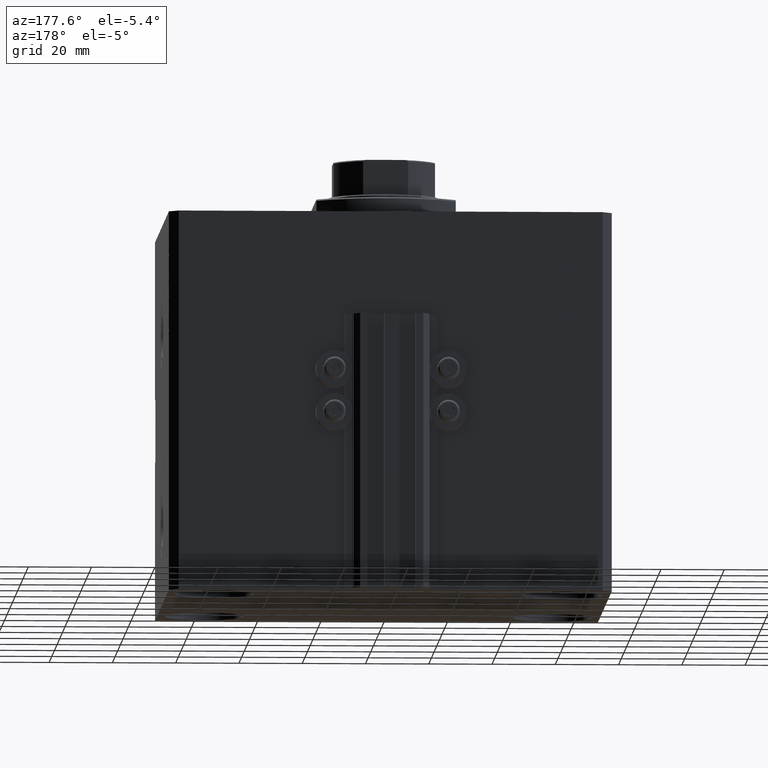
[diagram: clean part render]
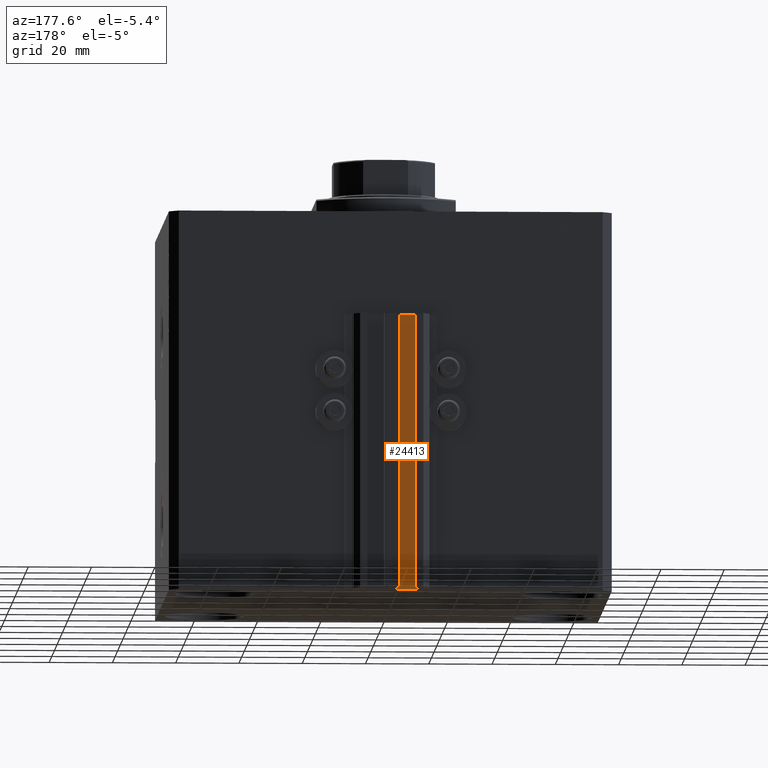
[diagram: same view with one face highlighted and labeled with its STEP entity id]
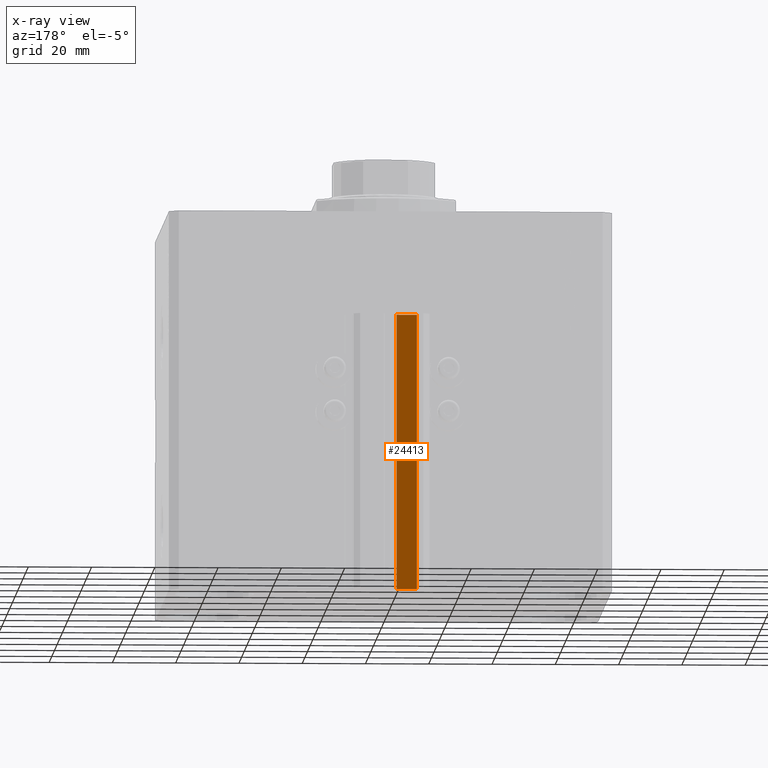
[diagram: x-ray of the same camera — body ghosted, the highlighted face saturated]
A machine part, auxiliary view. The second image highlights one B-rep face of the part: STEP entity #24413.
The next image is the same camera in x-ray: the body ghosted, the highlighted face saturated — about 0% of this face is hidden behind the body in this view.
In plain terms, the highlighted planar face has unit normal (0, 1, 0).
Its self-contained STEP definition (entity closure, byte-faithful):
#1225 = CARTESIAN_POINT ( 'NONE',  ( -1.800000000000000933, 57.00000000000000000, -33.00000000000000000 ) ) ;
#4106 = ORIENTED_EDGE ( 'NONE', *, *, #37953, .T. ) ;
#5208 = VERTEX_POINT ( 'NONE', #1225 ) ;
#6791 = LINE ( 'NONE', #28519, #14581 ) ;
#8046 = VECTOR ( 'NONE', #28829, 1000.000000000000000 ) ;
#9497 = EDGE_CURVE ( 'NONE', #40389, #5208, #6791, .T. ) ;
#9797 = VERTEX_POINT ( 'NONE', #29922 ) ;
#11166 = EDGE_LOOP ( 'NONE', ( #18982, #17372, #35896, #4106 ) ) ;
#14581 = VECTOR ( 'NONE', #21850, 1000.000000000000000 ) ;
#15717 = LINE ( 'NONE', #16436, #37675 ) ;
#16436 = CARTESIAN_POINT ( 'NONE',  ( -1.800000000000000933, 57.00000000000000000, -33.00000000000000000 ) ) ;
#16545 = CARTESIAN_POINT ( 'NONE',  ( -1.800000000000000933, 57.00000000000000000, -120.0000000000000000 ) ) ;
#17036 = PLANE ( 'NONE',  #45559 ) ;
#17372 = ORIENTED_EDGE ( 'NONE', *, *, #9497, .F. ) ;
#17482 = CARTESIAN_POINT ( 'NONE',  ( -1.800000000000000933, 57.00000000000000000, -120.0000000000000000 ) ) ;
#18982 = ORIENTED_EDGE ( 'NONE', *, *, #20335, .F. ) ;
#20335 = EDGE_CURVE ( 'NONE', #5208, #46179, #15717, .T. ) ;
#21850 = DIRECTION ( 'NONE',  ( 0.000000000000000000, 0.000000000000000000, 1.000000000000000000 ) ) ;
#24413 = ADVANCED_FACE ( 'NONE', ( #24923 ), #17036, .T. ) ;
#24910 = DIRECTION ( 'NONE',  ( 0.000000000000000000, 0.000000000000000000, 1.000000000000000000 ) ) ;
#24923 = FACE_OUTER_BOUND ( 'NONE', #11166, .T. ) ;
#26019 = VECTOR ( 'NONE', #24910, 1000.000000000000000 ) ;
#26800 = DIRECTION ( 'NONE',  ( -1.000000000000000000, 0.000000000000000000, 0.000000000000000000 ) ) ;
#27169 = CARTESIAN_POINT ( 'NONE',  ( -8.199999999999997513, 57.00000000000000000, -33.00000000000000000 ) ) ;
#28519 = CARTESIAN_POINT ( 'NONE',  ( -1.800000000000000933, 57.00000000000000000, -120.0000000000000000 ) ) ;
#28829 = DIRECTION ( 'NONE',  ( -1.000000000000000000, 0.000000000000000000, 0.000000000000000000 ) ) ;
#29922 = CARTESIAN_POINT ( 'NONE',  ( -8.199999999999997513, 57.00000000000000000, -120.0000000000000000 ) ) ;
#32078 = DIRECTION ( 'NONE',  ( 0.000000000000000000, 1.000000000000000000, -0.000000000000000000 ) ) ;
#32802 = CARTESIAN_POINT ( 'NONE',  ( -8.199999999999997513, 57.00000000000000000, -120.0000000000000000 ) ) ;
#35896 = ORIENTED_EDGE ( 'NONE', *, *, #46457, .T. ) ;
#36239 = LINE ( 'NONE', #17482, #8046 ) ;
#37675 = VECTOR ( 'NONE', #26800, 1000.000000000000000 ) ;
#37953 = EDGE_CURVE ( 'NONE', #9797, #46179, #43681, .T. ) ;
#40389 = VERTEX_POINT ( 'NONE', #42915 ) ;
#42915 = CARTESIAN_POINT ( 'NONE',  ( -1.800000000000000933, 57.00000000000000000, -120.0000000000000000 ) ) ;
#43194 = DIRECTION ( 'NONE',  ( 0.000000000000000000, 0.000000000000000000, 1.000000000000000000 ) ) ;
#43681 = LINE ( 'NONE', #32802, #26019 ) ;
#45559 = AXIS2_PLACEMENT_3D ( 'NONE', #16545, #32078, #43194 ) ;
#46179 = VERTEX_POINT ( 'NONE', #27169 ) ;
#46457 = EDGE_CURVE ( 'NONE', #40389, #9797, #36239, .T. ) ;